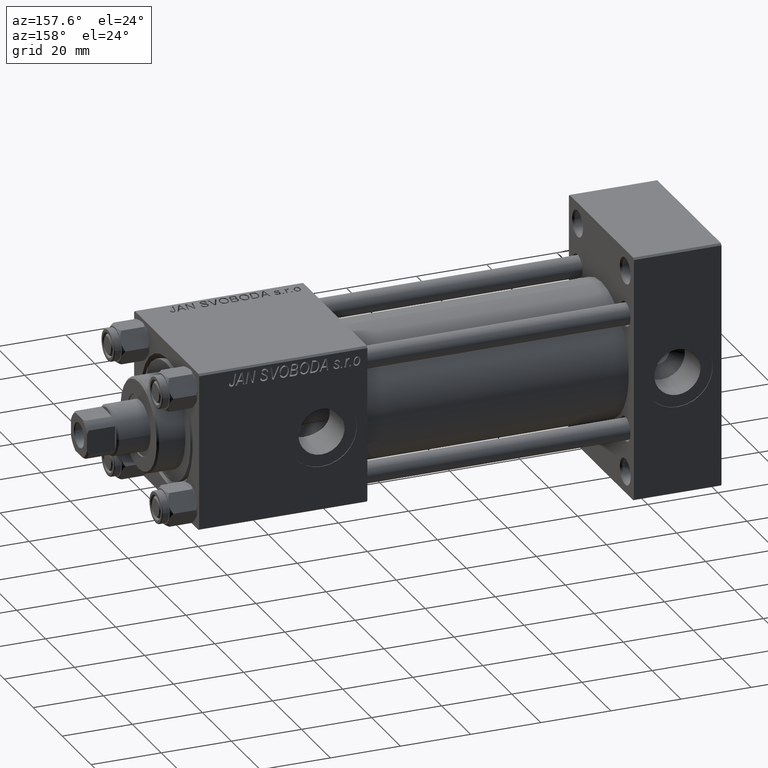
[diagram: clean part render]
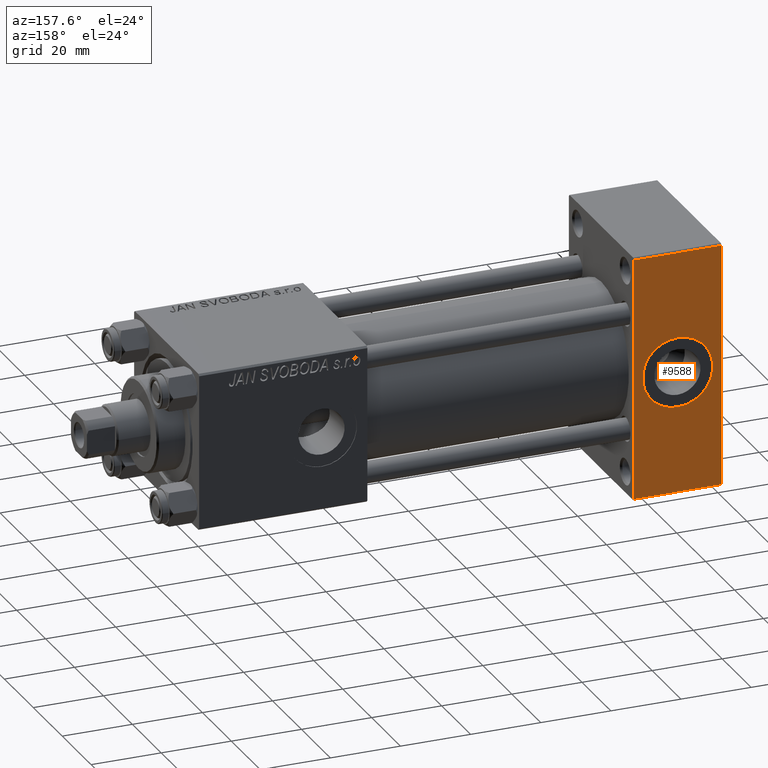
[diagram: same view with one face highlighted and labeled with its STEP entity id]
A machine part, auxiliary view. The second image highlights one B-rep face of the part: STEP entity #9588.
In plain terms, the highlighted planar face has unit normal (0, 1, 0).
Its self-contained STEP definition (entity closure, byte-faithful):
#2745 = CARTESIAN_POINT ( 'NONE',  ( 25.00000000000000000, 22.50000000000000355, 34.49999999999999289 ) ) ;
#3810 = CIRCLE ( 'NONE', #28803, 9.999999999999996447 ) ;
#4830 = ORIENTED_EDGE ( 'NONE', *, *, #35422, .F. ) ;
#6273 = AXIS2_PLACEMENT_3D ( 'NONE', #20757, #43217, #12411 ) ;
#6531 = CARTESIAN_POINT ( 'NONE',  ( 25.00000000000000000, 22.50000000000000355, 35.00000000000000711 ) ) ;
#7811 = VECTOR ( 'NONE', #41134, 1000.000000000000000 ) ;
#9273 = DIRECTION ( 'NONE',  ( 0.000000000000000000, 1.000000000000000000, 0.000000000000000000 ) ) ;
#9588 = ADVANCED_FACE ( 'NONE', ( #44941, #45198 ), #14389, .T. ) ;
#10066 = AXIS2_PLACEMENT_3D ( 'NONE', #20982, #29048, #36615 ) ;
#10280 = EDGE_CURVE ( 'NONE', #47152, #29131, #11226, .T. ) ;
#10314 = EDGE_LOOP ( 'NONE', ( #4830, #13217 ) ) ;
#10492 = CARTESIAN_POINT ( 'NONE',  ( 12.50000000000000178, 22.50000000000000355, -9.999999999999996447 ) ) ;
#11226 = LINE ( 'NONE', #29919, #42320 ) ;
#11465 = DIRECTION ( 'NONE',  ( -1.000000000000000000, 0.000000000000000000, 0.000000000000000000 ) ) ;
#12411 = DIRECTION ( 'NONE',  ( 0.000000000000000000, 0.000000000000000000, 1.000000000000000000 ) ) ;
#13217 = ORIENTED_EDGE ( 'NONE', *, *, #16348, .F. ) ;
#13630 = ORIENTED_EDGE ( 'NONE', *, *, #18033, .T. ) ;
#13991 = VERTEX_POINT ( 'NONE', #10492 ) ;
#14389 = PLANE ( 'NONE',  #10066 ) ;
#16348 = EDGE_CURVE ( 'NONE', #13991, #40564, #24813, .T. ) ;
#17725 = ORIENTED_EDGE ( 'NONE', *, *, #38439, .T. ) ;
#18033 = EDGE_CURVE ( 'NONE', #33493, #43097, #40795, .T. ) ;
#18998 = DIRECTION ( 'NONE',  ( 0.000000000000000000, 0.000000000000000000, -1.000000000000000000 ) ) ;
#19630 = CARTESIAN_POINT ( 'NONE',  ( 0.000000000000000000, 22.50000000000000355, 34.49999999999999289 ) ) ;
#20757 = CARTESIAN_POINT ( 'NONE',  ( 12.50000000000000000, 22.50000000000000355, 0.000000000000000000 ) ) ;
#20982 = CARTESIAN_POINT ( 'NONE',  ( 25.00000000000000000, 22.50000000000000355, 35.00000000000000711 ) ) ;
#21368 = CARTESIAN_POINT ( 'NONE',  ( 25.00000000000000000, 22.50000000000000355, 34.49999999999999289 ) ) ;
#23264 = VECTOR ( 'NONE', #37240, 1000.000000000000000 ) ;
#23287 = LINE ( 'NONE', #38678, #32293 ) ;
#24813 = CIRCLE ( 'NONE', #6273, 9.999999999999996447 ) ;
#28464 = DIRECTION ( 'NONE',  ( 0.000000000000000000, 0.000000000000000000, 1.000000000000000000 ) ) ;
#28499 = ORIENTED_EDGE ( 'NONE', *, *, #10280, .T. ) ;
#28803 = AXIS2_PLACEMENT_3D ( 'NONE', #48421, #9273, #28464 ) ;
#29048 = DIRECTION ( 'NONE',  ( -0.000000000000000000, 1.000000000000000000, 0.000000000000000000 ) ) ;
#29131 = VERTEX_POINT ( 'NONE', #31472 ) ;
#29919 = CARTESIAN_POINT ( 'NONE',  ( 25.00000000000000000, 22.50000000000000355, -34.49999999999999289 ) ) ;
#31472 = CARTESIAN_POINT ( 'NONE',  ( 0.000000000000000000, 22.50000000000000355, -34.49999999999999289 ) ) ;
#32178 = CARTESIAN_POINT ( 'NONE',  ( 12.50000000000000000, 22.50000000000000355, 9.999999999999996447 ) ) ;
#32293 = VECTOR ( 'NONE', #18998, 1000.000000000000000 ) ;
#33493 = VERTEX_POINT ( 'NONE', #19630 ) ;
#35083 = ORIENTED_EDGE ( 'NONE', *, *, #46022, .F. ) ;
#35422 = EDGE_CURVE ( 'NONE', #40564, #13991, #3810, .T. ) ;
#36615 = DIRECTION ( 'NONE',  ( 0.000000000000000000, -0.000000000000000000, 1.000000000000000000 ) ) ;
#37240 = DIRECTION ( 'NONE',  ( 1.000000000000000000, 0.000000000000000000, 0.000000000000000000 ) ) ;
#38439 = EDGE_CURVE ( 'NONE', #43097, #47152, #49711, .T. ) ;
#38573 = EDGE_LOOP ( 'NONE', ( #17725, #28499, #35083, #13630 ) ) ;
#38678 = CARTESIAN_POINT ( 'NONE',  ( 0.000000000000000000, 22.50000000000000355, 35.00000000000000711 ) ) ;
#40564 = VERTEX_POINT ( 'NONE', #32178 ) ;
#40795 = LINE ( 'NONE', #21368, #23264 ) ;
#41134 = DIRECTION ( 'NONE',  ( 0.000000000000000000, 0.000000000000000000, -1.000000000000000000 ) ) ;
#42320 = VECTOR ( 'NONE', #11465, 1000.000000000000000 ) ;
#43097 = VERTEX_POINT ( 'NONE', #2745 ) ;
#43217 = DIRECTION ( 'NONE',  ( 0.000000000000000000, 1.000000000000000000, 0.000000000000000000 ) ) ;
#44941 = FACE_BOUND ( 'NONE', #10314, .T. ) ;
#45198 = FACE_OUTER_BOUND ( 'NONE', #38573, .T. ) ;
#46022 = EDGE_CURVE ( 'NONE', #33493, #29131, #23287, .T. ) ;
#46081 = CARTESIAN_POINT ( 'NONE',  ( 25.00000000000000000, 22.50000000000000355, -34.49999999999999289 ) ) ;
#47152 = VERTEX_POINT ( 'NONE', #46081 ) ;
#48421 = CARTESIAN_POINT ( 'NONE',  ( 12.50000000000000000, 22.50000000000000355, 0.000000000000000000 ) ) ;
#49711 = LINE ( 'NONE', #6531, #7811 ) ;